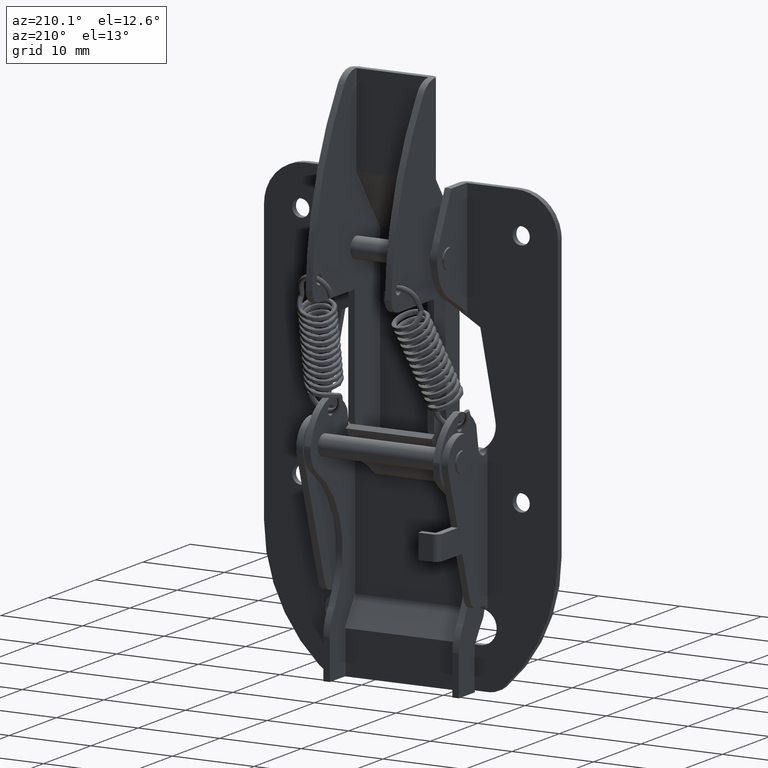
[diagram: clean part render]
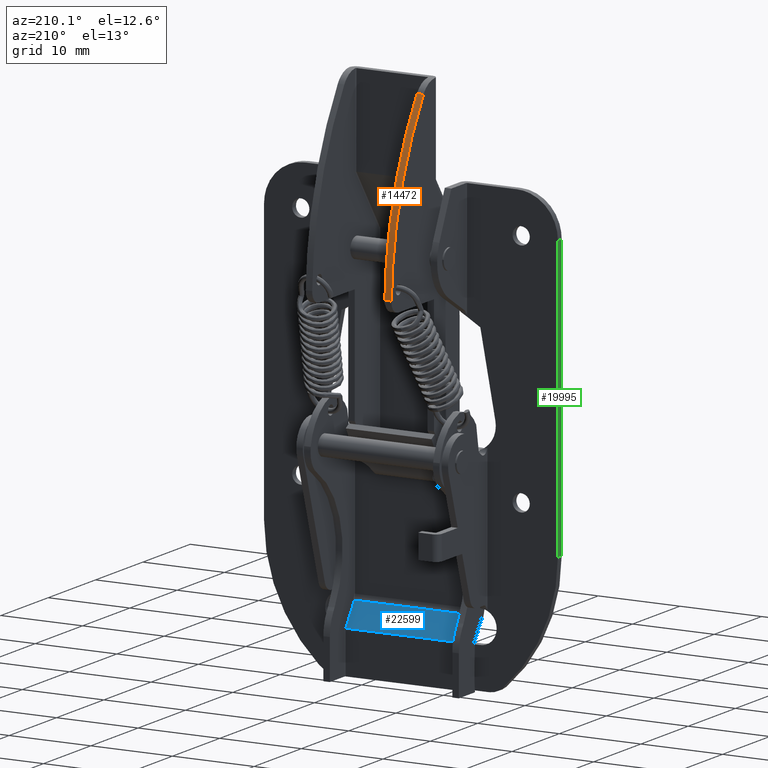
[diagram: same view with three faces highlighted in distinct colors, each labeled with its STEP entity id]
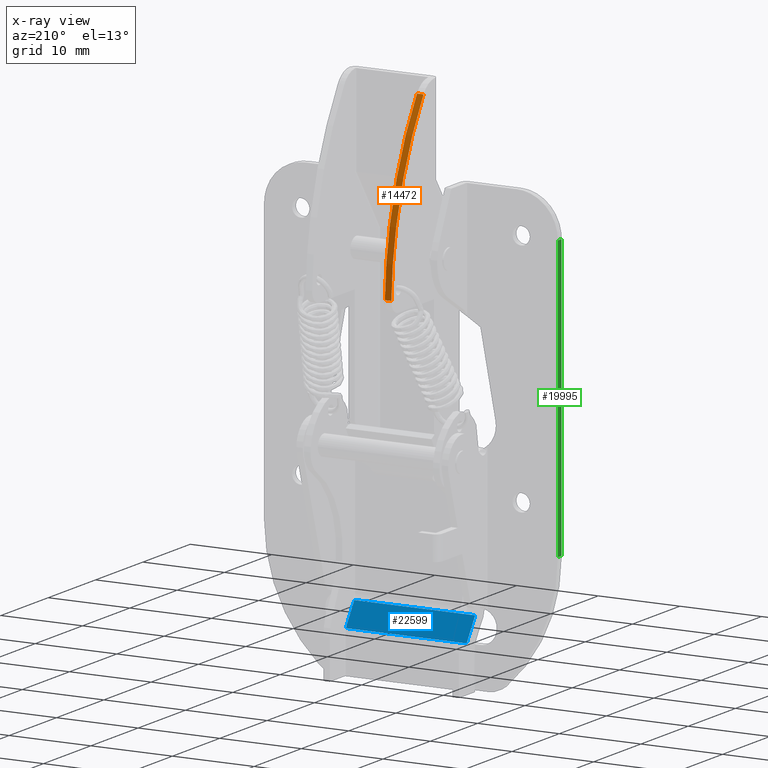
[diagram: x-ray of the same camera — body ghosted, the three highlighted faces saturated]
A machine part, auxiliary view with three faces highlighted in distinct colors.
The next image is the same camera in x-ray (body ghosted, the three faces saturated) — at least one of them is partly hidden behind the body in this view.
Their STEP definitions:

[orange] entity #14472 — the highlighted face is a freeform B-spline surface patch.
#14412=CARTESIAN_POINT('',(9.070000000000000,14.017369570751367,-6.557913275413948));
#14413=CARTESIAN_POINT('',(8.229500000000092,14.017369570751367,-6.557913275413948));
#14414=CARTESIAN_POINT('',(9.070000000000002,13.984533356190017,6.202802834321410));
#14415=CARTESIAN_POINT('',(8.229500000000092,13.984533356190017,6.202802834321410));
#14416=CARTESIAN_POINT('',(9.070000000000000,6.568019795558986,16.587035134073872));
#14417=CARTESIAN_POINT('',(8.229500000000094,6.568019795558986,16.587035134073872));
#14425=(BOUNDED_SURFACE()B_SPLINE_SURFACE(1,2,((#14412,#14414,#14416),(#14413,#14415,#14417)),.UNSPECIFIED.,.F.,.F.,.U.)B_SPLINE_SURFACE_WITH_KNOTS((2,2),(3,3),(0.0,1.0),(0.504142645996809,25.409757371741531),.UNSPECIFIED.)GEOMETRIC_REPRESENTATION_ITEM()RATIONAL_B_SPLINE_SURFACE(((0.997934995130069,0.947880195932453,0.991966053032800),(0.997934995130069,0.947880195932453,0.991966053032800)))REPRESENTATION_ITEM('')SURFACE());
#14426=CARTESIAN_POINT('',(9.050000000000001,7.200350372967740,15.675195559438100));
#14427=VERTEX_POINT('',#14426);
#14428=CARTESIAN_POINT('',(9.050000000000001,13.999317999472900,-5.454772392760360));
#14429=VERTEX_POINT('',#14428);
#14430=CARTESIAN_POINT('',(9.050000000000001,7.200350372967740,15.675195559438100));
#14431=CARTESIAN_POINT('',(9.050000000000001,13.651003553719395,6.091982759823052));
#14432=CARTESIAN_POINT('',(9.050000000000001,13.999317999472900,-5.454772392760360));
#14440=(BOUNDED_CURVE()B_SPLINE_CURVE(2,(#14430,#14431,#14432),.UNSPECIFIED.,.F.,.U.)CURVE()GEOMETRIC_REPRESENTATION_ITEM()QUASI_UNIFORM_CURVE()RATIONAL_B_SPLINE_CURVE((1.0,0.960736901955118,1.0))REPRESENTATION_ITEM(''));
#14441=EDGE_CURVE('',#14427,#14429,#14440,.T.);
#14442=ORIENTED_EDGE('',*,*,#14441,.T.);
#14443=CARTESIAN_POINT('',(8.250000000000091,13.999317999472900,-5.454772392760360));
#14444=VERTEX_POINT('',#14443);
#14445=CARTESIAN_POINT('',(9.050000000000001,13.999317999472900,-5.454772392760360));
#14446=CARTESIAN_POINT('',(8.250000000000091,13.999317999472900,-5.454772392760360));
#14447=QUASI_UNIFORM_CURVE('',1,(#14445,#14446),.UNSPECIFIED.,.F.,.U.);
#14448=EDGE_CURVE('',#14429,#14444,#14447,.T.);
#14449=ORIENTED_EDGE('',*,*,#14448,.T.);
#14450=CARTESIAN_POINT('',(8.250000000000091,7.200350372967740,15.675195559438100));
#14451=VERTEX_POINT('',#14450);
#14452=CARTESIAN_POINT('',(8.250000000000091,7.200350372967740,15.675195559438100));
#14453=CARTESIAN_POINT('',(8.250000000000091,13.651003553719395,6.091982759823052));
#14454=CARTESIAN_POINT('',(8.250000000000091,13.999317999472900,-5.454772392760360));
#14462=(BOUNDED_CURVE()B_SPLINE_CURVE(2,(#14452,#14453,#14454),.UNSPECIFIED.,.F.,.U.)CURVE()GEOMETRIC_REPRESENTATION_ITEM()QUASI_UNIFORM_CURVE()RATIONAL_B_SPLINE_CURVE((1.0,0.960736901955118,1.0))REPRESENTATION_ITEM(''));
#14463=EDGE_CURVE('',#14451,#14444,#14462,.T.);
#14464=ORIENTED_EDGE('',*,*,#14463,.F.);
#14465=CARTESIAN_POINT('',(9.050000000000001,7.200350372967740,15.675195559438100));
#14466=CARTESIAN_POINT('',(8.250000000000091,7.200350372967740,15.675195559438100));
#14467=QUASI_UNIFORM_CURVE('',1,(#14465,#14466),.UNSPECIFIED.,.F.,.U.);
#14468=EDGE_CURVE('',#14427,#14451,#14467,.T.);
#14469=ORIENTED_EDGE('',*,*,#14468,.F.);
#14470=EDGE_LOOP('',(#14442,#14449,#14464,#14469));
#14471=FACE_OUTER_BOUND('',#14470,.T.);
#14472=ADVANCED_FACE('',(#14471),#14425,.T.);

[blue] entity #22599 — the highlighted face is a freeform B-spline surface patch.
#21464=CARTESIAN_POINT('',(20.900012999999898,1.799999999999900,-44.757780343880953));
#21465=VERTEX_POINT('',#21464);
#21508=CARTESIAN_POINT('',(20.900012999999451,-0.000608114531880,-42.056866816393750));
#21509=VERTEX_POINT('',#21508);
#21533=CARTESIAN_POINT('',(20.900012999999451,-0.000608114531880,-42.056866816393750));
#21534=CARTESIAN_POINT('',(20.900012999999898,1.799999999999900,-44.757780343880953));
#21535=QUASI_UNIFORM_CURVE('',1,(#21533,#21534),.UNSPECIFIED.,.F.,.U.);
#21536=EDGE_CURVE('',#21509,#21465,#21535,.T.);
#21728=CARTESIAN_POINT('',(6.100012999999410,-0.000608114531880,-42.056866816393750));
#21729=VERTEX_POINT('',#21728);
#21791=CARTESIAN_POINT('',(6.100013000000000,1.799999999999900,-44.757780343880953));
#21792=VERTEX_POINT('',#21791);
#21816=CARTESIAN_POINT('',(6.100013000000000,1.799999999999900,-44.757780343880953));
#21817=CARTESIAN_POINT('',(6.100012999999410,-0.000608114531880,-42.056866816393750));
#21818=QUASI_UNIFORM_CURVE('',1,(#21816,#21817),.UNSPECIFIED.,.F.,.U.);
#21819=EDGE_CURVE('',#21792,#21729,#21818,.T.);
#22573=CARTESIAN_POINT('',(20.900012999999451,-0.000608114531880,-42.056866816393750));
#22574=CARTESIAN_POINT('',(6.100012999999410,-0.000608114531880,-42.056866816393750));
#22575=QUASI_UNIFORM_CURVE('',1,(#22573,#22574),.UNSPECIFIED.,.F.,.U.);
#22576=EDGE_CURVE('',#21509,#21729,#22575,.T.);
#22584=CARTESIAN_POINT('',(5.360752750821034,-0.090549076321085,-41.921955305992803));
#22585=CARTESIAN_POINT('',(5.360752750821034,1.889941122776012,-44.892692095762371));
#22586=CARTESIAN_POINT('',(21.639273381500590,-0.090549076321085,-41.921955305992803));
#22587=CARTESIAN_POINT('',(21.639273381500590,1.889941122776012,-44.892692095762371));
#22588=B_SPLINE_SURFACE_WITH_KNOTS('',1,1,((#22584,#22586),(#22585,#22587)),.UNSPECIFIED.,.F.,.F.,.U.,(2,2),(2,2),(0.0,3.570380722389428),(0.0,16.278520630679552),.UNSPECIFIED.);
#22589=CARTESIAN_POINT('',(20.900012999999898,1.799999999999900,-44.757780343880953));
#22590=CARTESIAN_POINT('',(6.100013000000000,1.799999999999900,-44.757780343880953));
#22591=QUASI_UNIFORM_CURVE('',1,(#22589,#22590),.UNSPECIFIED.,.F.,.U.);
#22592=EDGE_CURVE('',#21465,#21792,#22591,.T.);
#22593=ORIENTED_EDGE('',*,*,#22592,.T.);
#22594=ORIENTED_EDGE('',*,*,#21819,.T.);
#22595=ORIENTED_EDGE('',*,*,#22576,.F.);
#22596=ORIENTED_EDGE('',*,*,#21536,.T.);
#22597=EDGE_LOOP('',(#22593,#22594,#22595,#22596));
#22598=FACE_OUTER_BOUND('',#22597,.T.);
#22599=ADVANCED_FACE('',(#22598),#22588,.F.);

[green] entity #19995 — the highlighted face is a freeform B-spline surface patch.
#19539=CARTESIAN_POINT('',(-4.500000000000000,0.800002999999919,0.0));
#19540=VERTEX_POINT('',#19539);
#19556=CARTESIAN_POINT('',(-4.500000000000000,0.0,0.0));
#19557=VERTEX_POINT('',#19556);
#19558=CARTESIAN_POINT('',(-4.500000000000000,0.0,0.0));
#19559=CARTESIAN_POINT('',(-4.500000000000000,0.800002999999919,0.0));
#19560=QUASI_UNIFORM_CURVE('',1,(#19558,#19559),.UNSPECIFIED.,.F.,.U.);
#19561=EDGE_CURVE('',#19557,#19540,#19560,.T.);
#19728=CARTESIAN_POINT('',(-4.500000000000000,0.0,-34.387512000000100));
#19729=VERTEX_POINT('',#19728);
#19730=CARTESIAN_POINT('',(-4.500000000000000,0.0,0.0));
#19731=CARTESIAN_POINT('',(-4.500000000000000,0.0,-34.387512000000100));
#19732=QUASI_UNIFORM_CURVE('',1,(#19730,#19731),.UNSPECIFIED.,.F.,.U.);
#19733=EDGE_CURVE('',#19557,#19729,#19732,.T.);
#19956=CARTESIAN_POINT('',(-4.500000000000000,0.800002999999938,-34.387512000000100));
#19957=VERTEX_POINT('',#19956);
#19958=CARTESIAN_POINT('',(-4.500000000000000,0.800002999999938,-34.387512000000100));
#19959=CARTESIAN_POINT('',(-4.500000000000000,0.0,-34.387512000000100));
#19960=QUASI_UNIFORM_CURVE('',1,(#19958,#19959),.UNSPECIFIED.,.F.,.U.);
#19961=EDGE_CURVE('',#19957,#19729,#19960,.T.);
#19980=CARTESIAN_POINT('',(-4.500000000000000,-0.039960148299436,-36.105168480555797));
#19981=CARTESIAN_POINT('',(-4.500000000000000,-0.039960148299436,1.717657095452327));
#19982=CARTESIAN_POINT('',(-4.500000000000000,0.839963169757126,-36.105168480555797));
#19983=CARTESIAN_POINT('',(-4.500000000000000,0.839963169757126,1.717657095452327));
#19984=B_SPLINE_SURFACE_WITH_KNOTS('',1,1,((#19980,#19982),(#19981,#19983)),.UNSPECIFIED.,.F.,.F.,.U.,(2,2),(2,2),(0.0,37.822825576008121),(0.041708334948495,0.958291687403247),.UNSPECIFIED.);
#19985=ORIENTED_EDGE('',*,*,#19733,.F.);
#19986=ORIENTED_EDGE('',*,*,#19561,.T.);
#19987=CARTESIAN_POINT('',(-4.500000000000000,0.800002999999919,0.0));
#19988=CARTESIAN_POINT('',(-4.500000000000000,0.800002999999938,-34.387512000000100));
#19989=QUASI_UNIFORM_CURVE('',1,(#19987,#19988),.UNSPECIFIED.,.F.,.U.);
#19990=EDGE_CURVE('',#19540,#19957,#19989,.T.);
#19991=ORIENTED_EDGE('',*,*,#19990,.T.);
#19992=ORIENTED_EDGE('',*,*,#19961,.T.);
#19993=EDGE_LOOP('',(#19985,#19986,#19991,#19992));
#19994=FACE_OUTER_BOUND('',#19993,.T.);
#19995=ADVANCED_FACE('',(#19994),#19984,.T.);